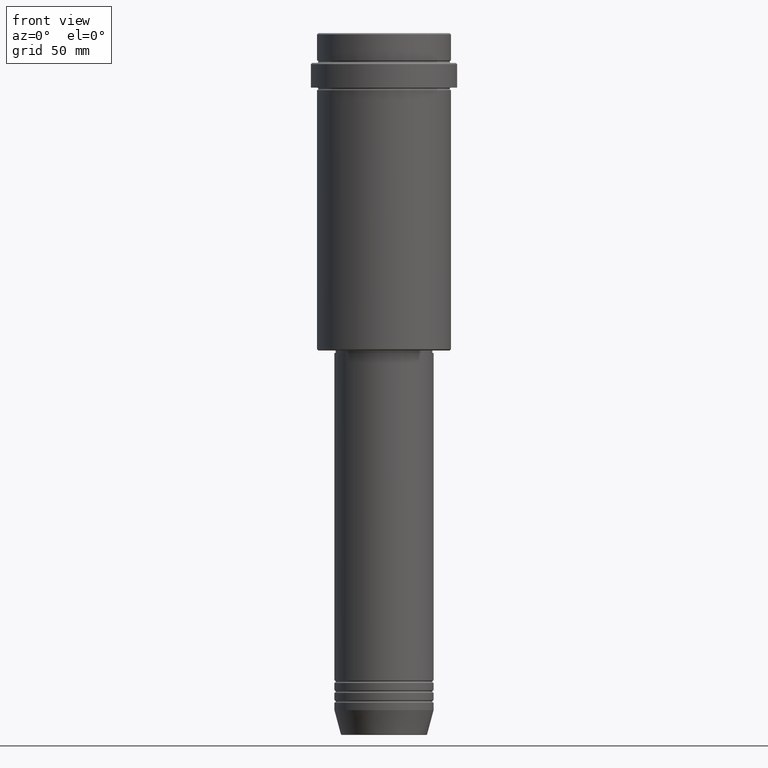
[diagram: clean part render]
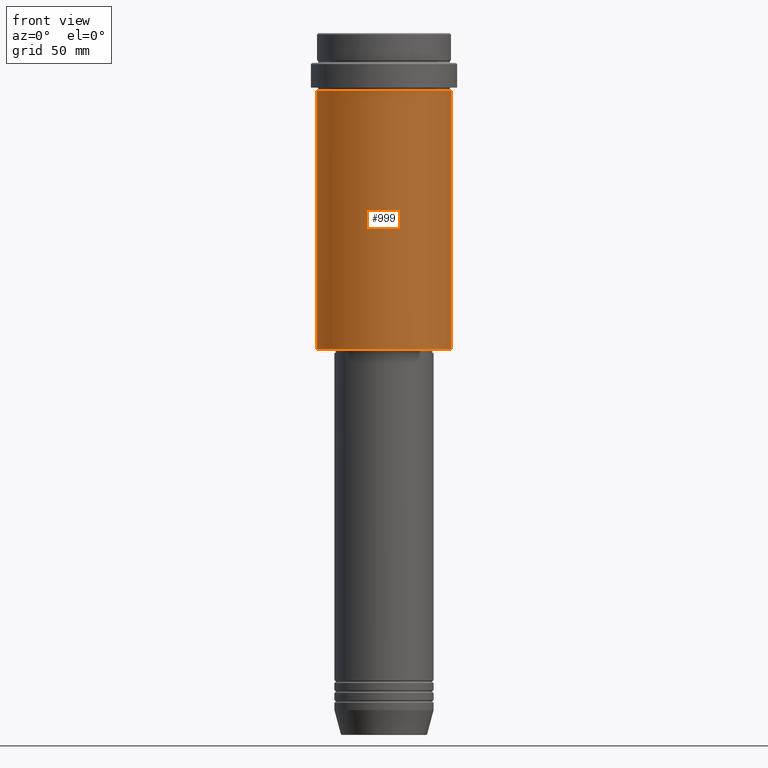
[diagram: same view with one face highlighted and labeled with its STEP entity id]
A machine part, front view. The second image highlights one B-rep face of the part: STEP entity #999.
In plain terms, the highlighted cylindrical surface (partial cylindrical patch) has radius 27 mm, axis along (-0, -0, 1).
Its self-contained STEP definition (entity closure, byte-faithful):
#19 = EDGE_CURVE ( 'NONE', #852, #1385, #187, .T. ) ;
#29 = VECTOR ( 'NONE', #144, 1000.000000000000000 ) ;
#72 = CARTESIAN_POINT ( 'NONE',  ( -27.00000000000000355, 3.306546357697854128E-15, -23.00000000000001421 ) ) ;
#113 = DIRECTION ( 'NONE',  ( 1.000000000000000000, 0.000000000000000000, 0.000000000000000000 ) ) ;
#144 = DIRECTION ( 'NONE',  ( -0.000000000000000000, -0.000000000000000000, 1.000000000000000000 ) ) ;
#187 = CIRCLE ( 'NONE', #729, 27.00000000000000355 ) ;
#196 = AXIS2_PLACEMENT_3D ( 'NONE', #213, #654, #977 ) ;
#199 = CARTESIAN_POINT ( 'NONE',  ( 27.00000000000000355, 0.000000000000000000, -23.00000000000001421 ) ) ;
#209 = VERTEX_POINT ( 'NONE', #316 ) ;
#213 = CARTESIAN_POINT ( 'NONE',  ( 0.000000000000000000, 0.000000000000000000, -127.5000000000000568 ) ) ;
#217 = AXIS2_PLACEMENT_3D ( 'NONE', #1201, #1003, #113 ) ;
#246 = DIRECTION ( 'NONE',  ( 1.000000000000000000, 0.000000000000000000, 0.000000000000000000 ) ) ;
#267 = CARTESIAN_POINT ( 'NONE',  ( 27.00000000000000355, 0.000000000000000000, 0.000000000000000000 ) ) ;
#316 = CARTESIAN_POINT ( 'NONE',  ( -27.00000000000000355, 3.306546357697854128E-15, -127.5000000000000568 ) ) ;
#321 = ORIENTED_EDGE ( 'NONE', *, *, #19, .F. ) ;
#335 = LINE ( 'NONE', #693, #1236 ) ;
#354 = LINE ( 'NONE', #267, #29 ) ;
#361 = DIRECTION ( 'NONE',  ( -0.000000000000000000, -0.000000000000000000, 1.000000000000000000 ) ) ;
#378 = DIRECTION ( 'NONE',  ( -0.000000000000000000, -0.000000000000000000, 1.000000000000000000 ) ) ;
#405 = CARTESIAN_POINT ( 'NONE',  ( 27.00000000000000355, 0.000000000000000000, -127.5000000000000568 ) ) ;
#414 = ORIENTED_EDGE ( 'NONE', *, *, #1152, .T. ) ;
#446 = FACE_OUTER_BOUND ( 'NONE', #1273, .T. ) ;
#637 = EDGE_CURVE ( 'NONE', #209, #852, #335, .T. ) ;
#654 = DIRECTION ( 'NONE',  ( -0.000000000000000000, -0.000000000000000000, 1.000000000000000000 ) ) ;
#693 = CARTESIAN_POINT ( 'NONE',  ( -27.00000000000000355, 3.306546357697854128E-15, 0.000000000000000000 ) ) ;
#729 = AXIS2_PLACEMENT_3D ( 'NONE', #1124, #361, #246 ) ;
#820 = CIRCLE ( 'NONE', #196, 27.00000000000000355 ) ;
#844 = ORIENTED_EDGE ( 'NONE', *, *, #1416, .T. ) ;
#852 = VERTEX_POINT ( 'NONE', #72 ) ;
#875 = ORIENTED_EDGE ( 'NONE', *, *, #637, .F. ) ;
#977 = DIRECTION ( 'NONE',  ( -1.000000000000000000, 0.000000000000000000, 0.000000000000000000 ) ) ;
#999 = ADVANCED_FACE ( 'NONE', ( #446 ), #1101, .T. ) ;
#1003 = DIRECTION ( 'NONE',  ( -0.000000000000000000, -0.000000000000000000, 1.000000000000000000 ) ) ;
#1014 = VERTEX_POINT ( 'NONE', #405 ) ;
#1101 = CYLINDRICAL_SURFACE ( 'NONE', #217, 27.00000000000000355 ) ;
#1124 = CARTESIAN_POINT ( 'NONE',  ( 0.000000000000000000, 0.000000000000000000, -23.00000000000001421 ) ) ;
#1152 = EDGE_CURVE ( 'NONE', #1014, #1385, #354, .T. ) ;
#1201 = CARTESIAN_POINT ( 'NONE',  ( 0.000000000000000000, 0.000000000000000000, 0.000000000000000000 ) ) ;
#1236 = VECTOR ( 'NONE', #378, 1000.000000000000000 ) ;
#1273 = EDGE_LOOP ( 'NONE', ( #875, #844, #414, #321 ) ) ;
#1385 = VERTEX_POINT ( 'NONE', #199 ) ;
#1416 = EDGE_CURVE ( 'NONE', #209, #1014, #820, .T. ) ;